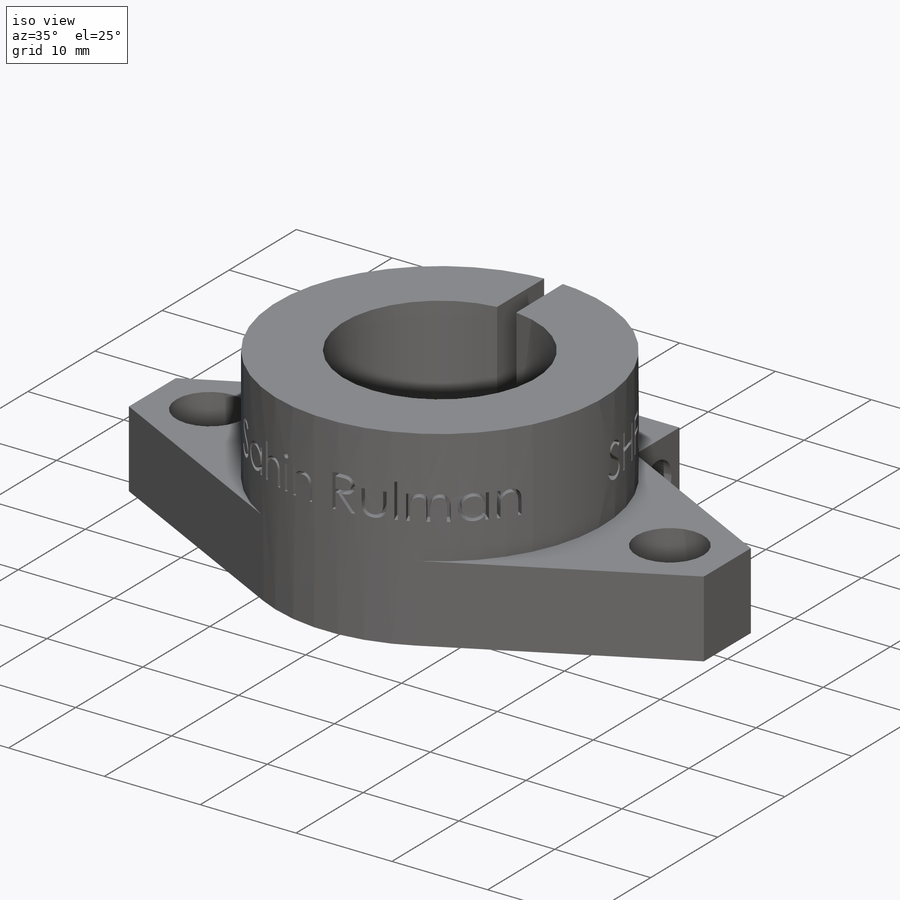
[diagram: iso view]
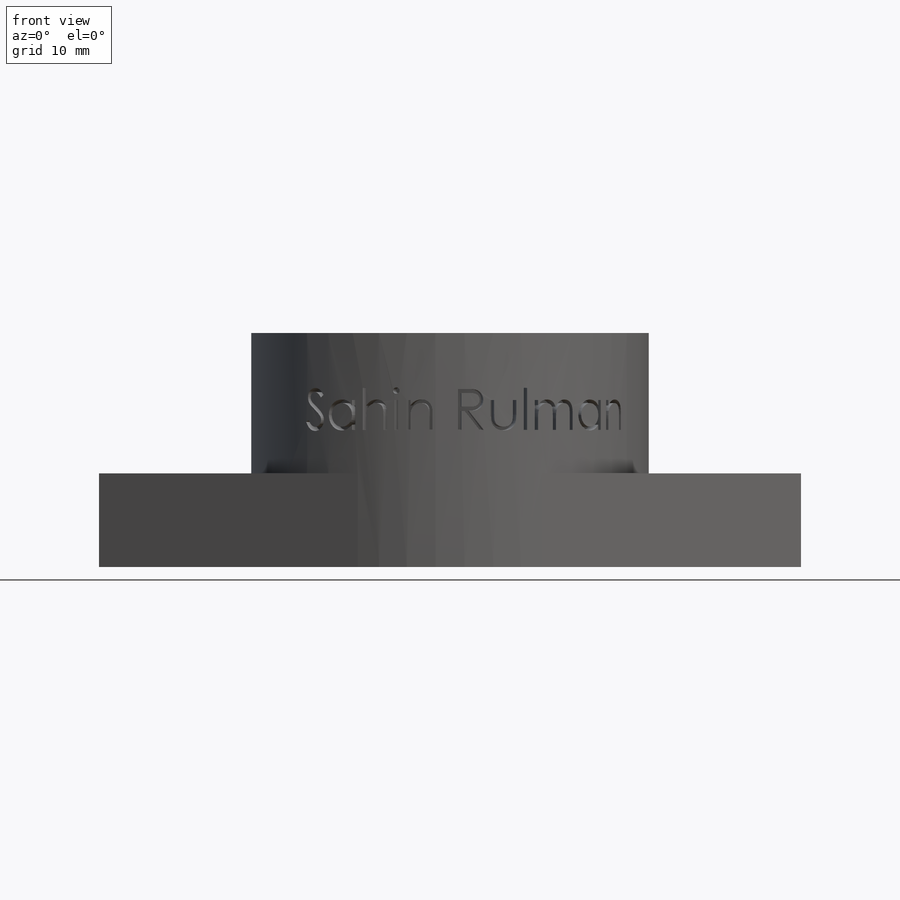
[diagram: front view]
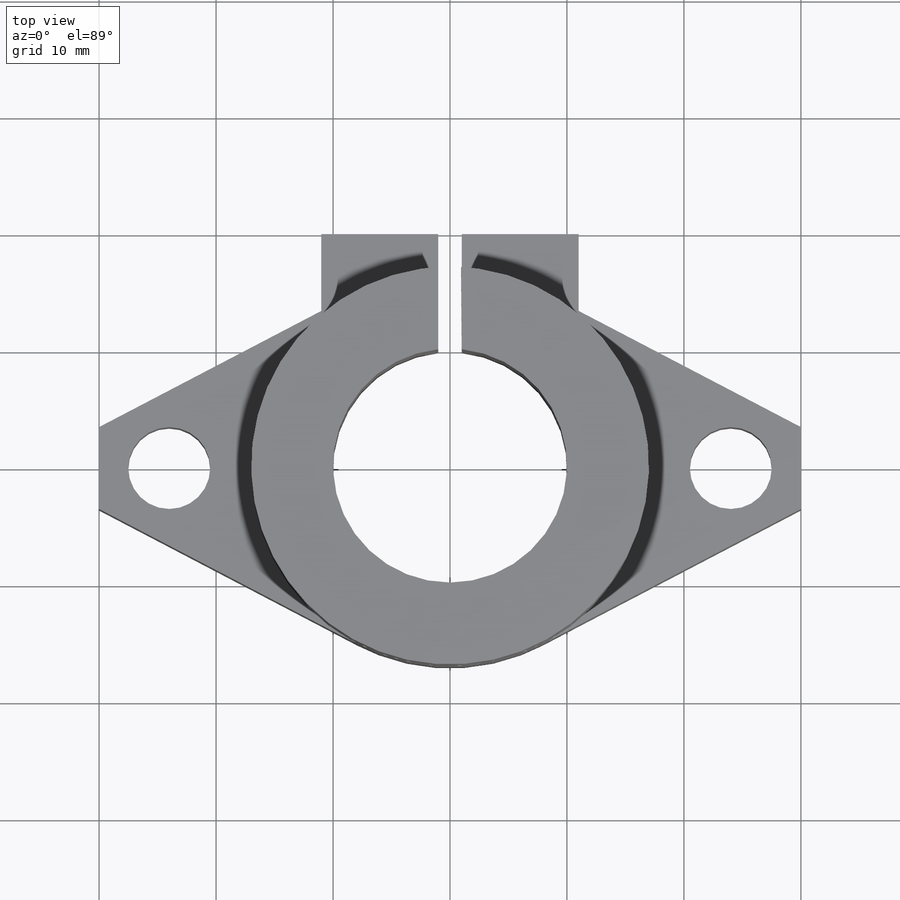
[diagram: top view]
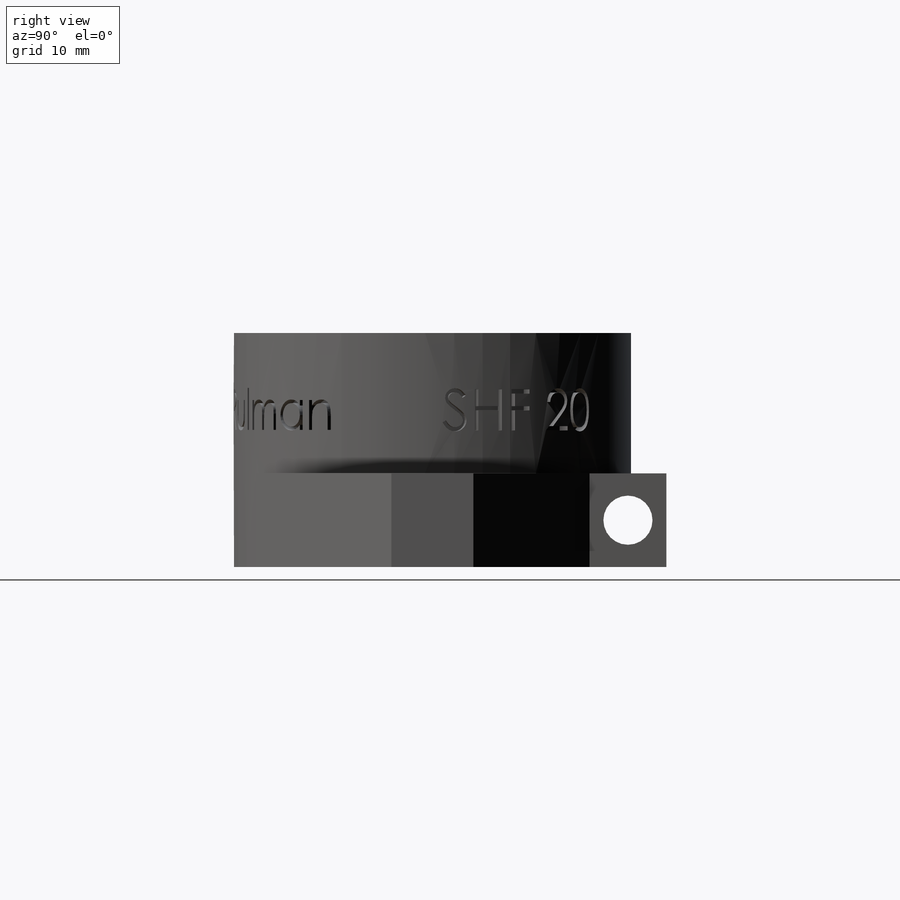
[diagram: right view]
SOLIDWORKS PART (.sldprt)
format: sldprt  version: not decoded by parser v0  size: 939,008 bytes
history: native  units: mm
features: sketch x5, extrude x3, plane x2, material x1, cut_extrude x1 (+11 scaffold rows collapsed)
feature tree (23):
  scaffold x11  (default folders/planes/origin — collapsed)
  material  "Material <not specified>"
  sketch  "Sketch1"  dims[c1.D1=20.0mm c1.D2=34.0mm c1.D7=7.0mm c1.D8=7.0mm c1.D9=7.0mm c1.D10=3.5mm c1.D6=37.0mm c1.D11=10.0mm c1.D3=24.0mm c1.D4=24.0mm c1.D5=30.0mm c2.D6=30.0mm c2.D3=1.0mm c2.D4=1.0mm]
  extrude  "Boss-Extrude1"  Depth=8mm
  sketch  "Sketch2"
  extrude  "Boss-Extrude2"  Depth=12mm
  sketch  "Sketch3"  dims[D1=4.2mm]
  cut_extrude  "Cut-Extrude1"  [1 undecoded]
  plane  "Plane1"  Offset=27.105043mm
  sketch  "Sketch4"  dims[D1=1.0mm]
  plane  "Plane2"  Offset=46.073239mm
  sketch  "Sketch5"
  extrude  "Wrap2"  Depth=1mm
decode coverage: 6 of 9 modeling features carry decoded parameters
note: 1 parameter value undecoded
note: suppression state not decoded; provenance and decode notes live in map.json
